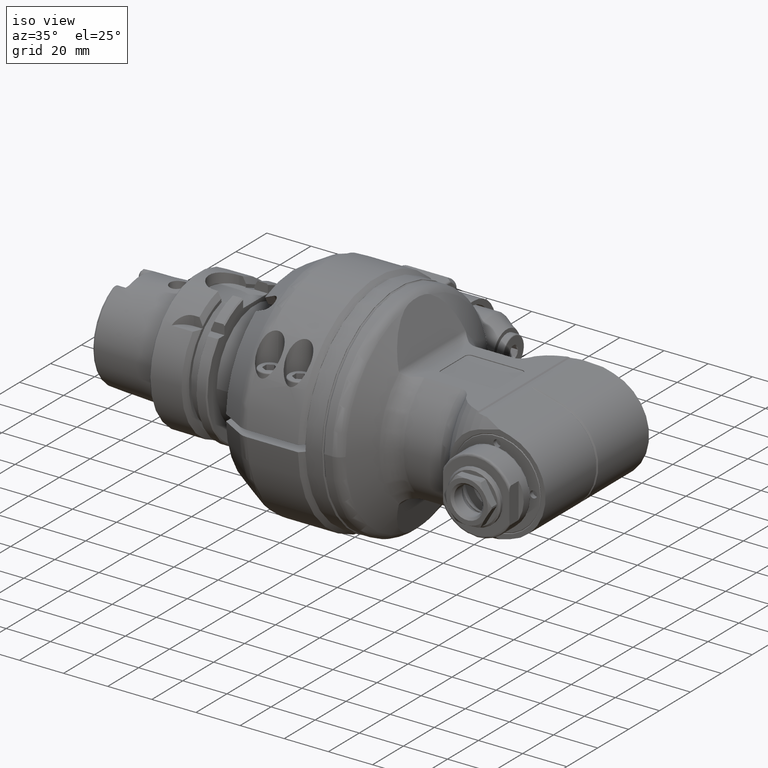
[diagram: clean part render]
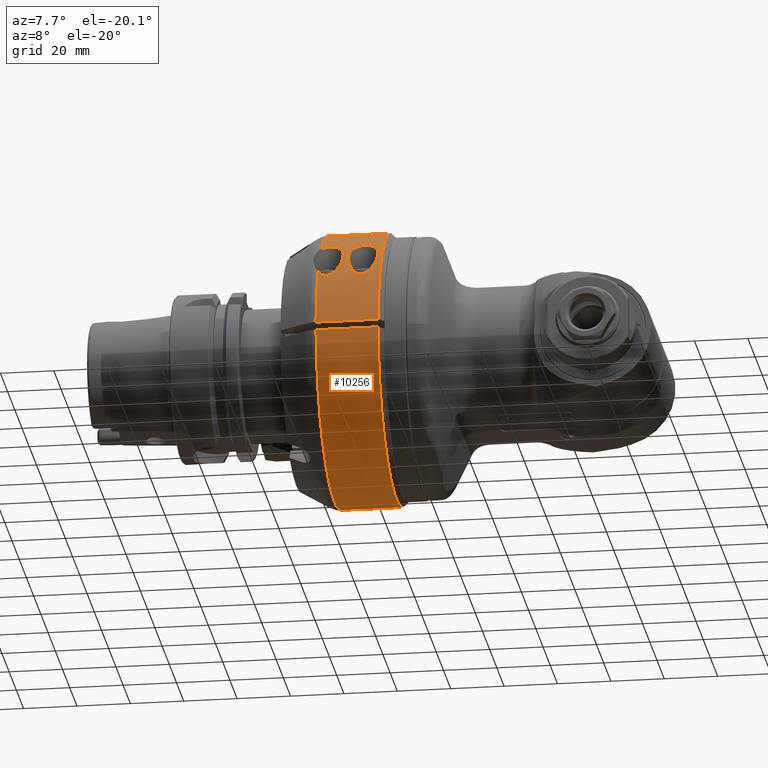
[diagram: tour spotlight — one face highlighted and labeled with its STEP entity id]
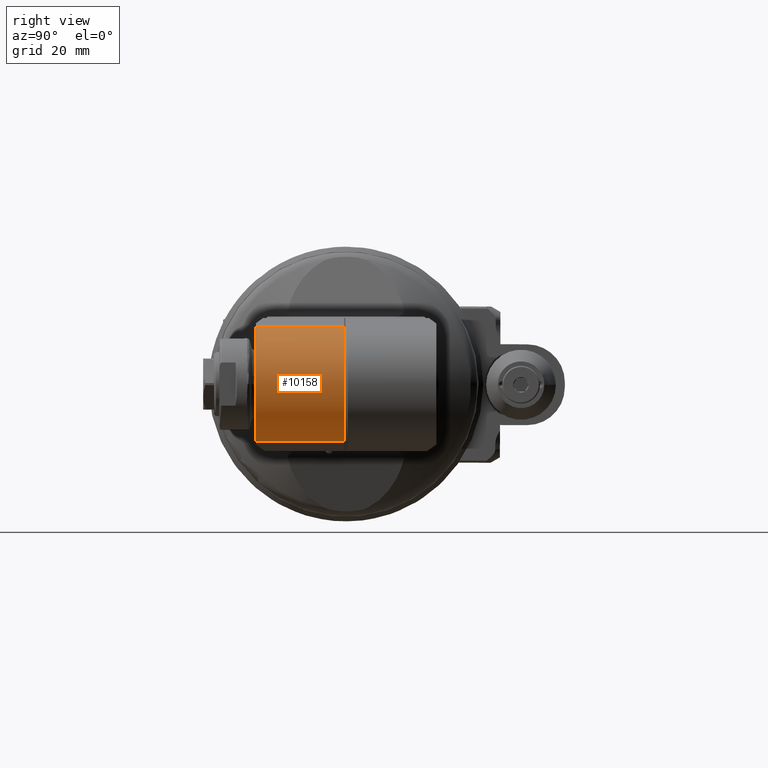
[diagram: tour spotlight — one face highlighted and labeled with its STEP entity id]
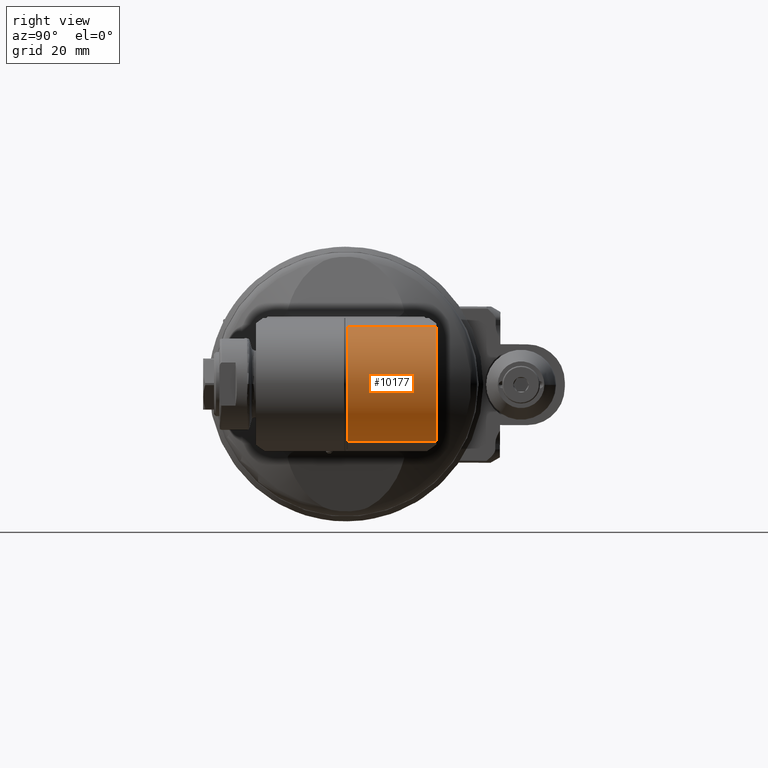
[diagram: tour spotlight — one face highlighted and labeled with its STEP entity id]
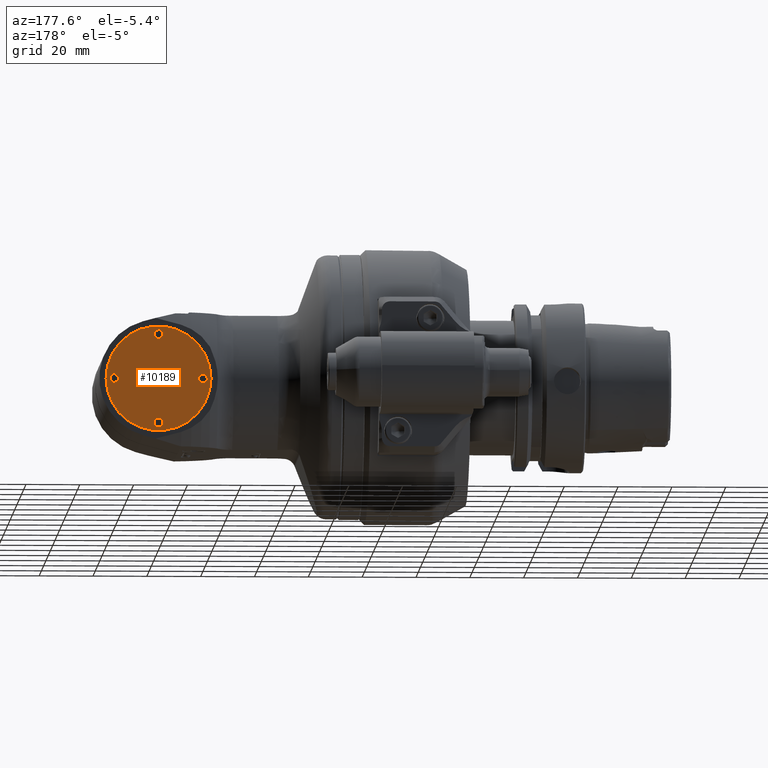
[diagram: tour spotlight — one face highlighted and labeled with its STEP entity id]
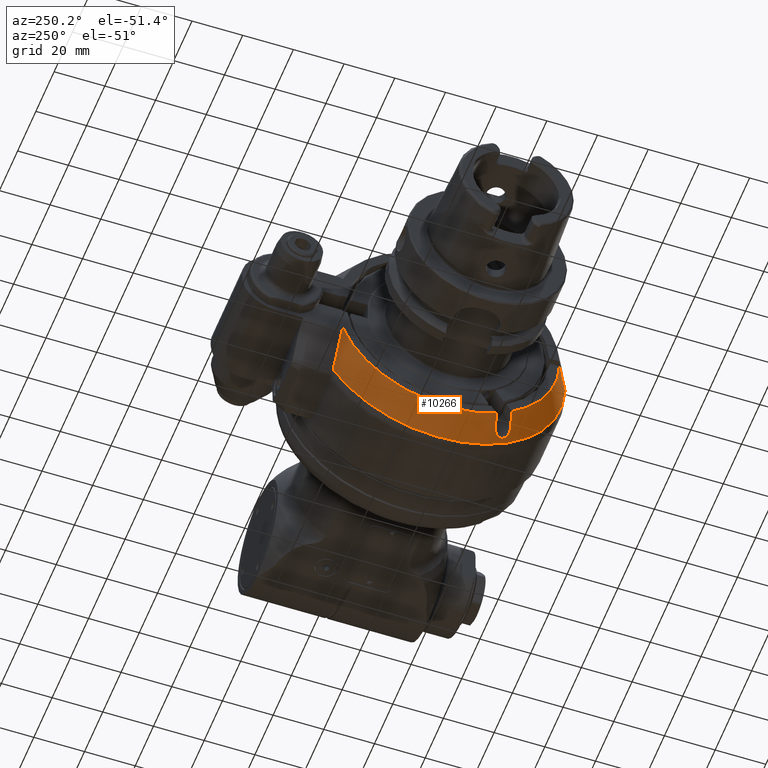
[diagram: tour spotlight — one face highlighted and labeled with its STEP entity id]
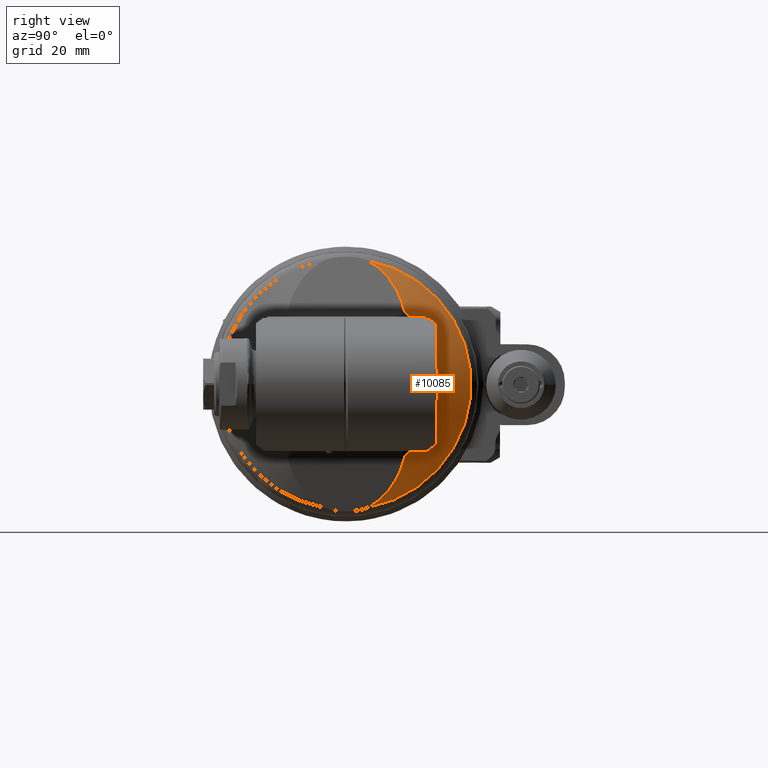
[diagram: tour spotlight — one face highlighted and labeled with its STEP entity id]
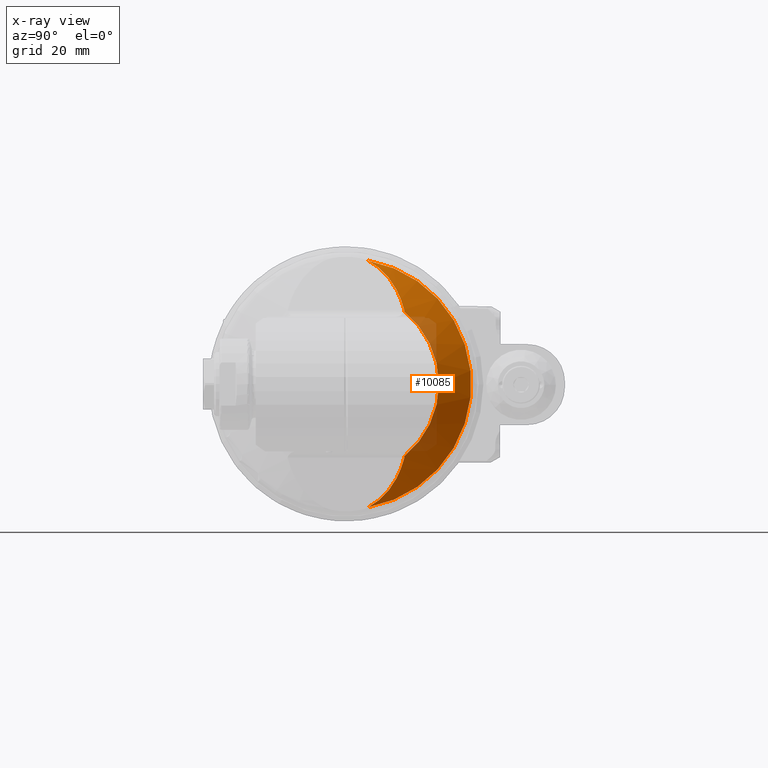
[diagram: x-ray of the same camera — body ghosted, this tour face saturated]
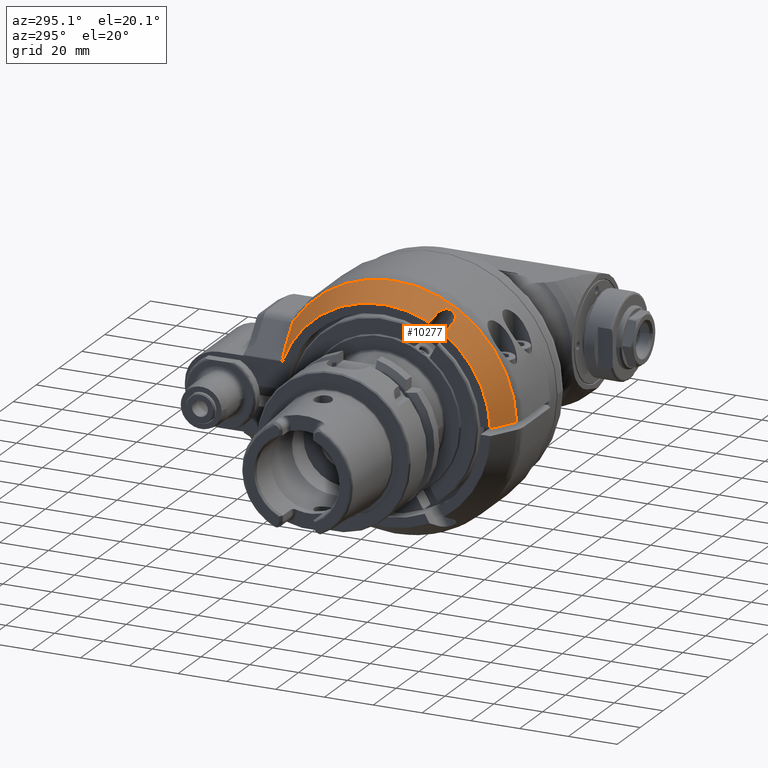
[diagram: tour spotlight — one face highlighted and labeled with its STEP entity id]
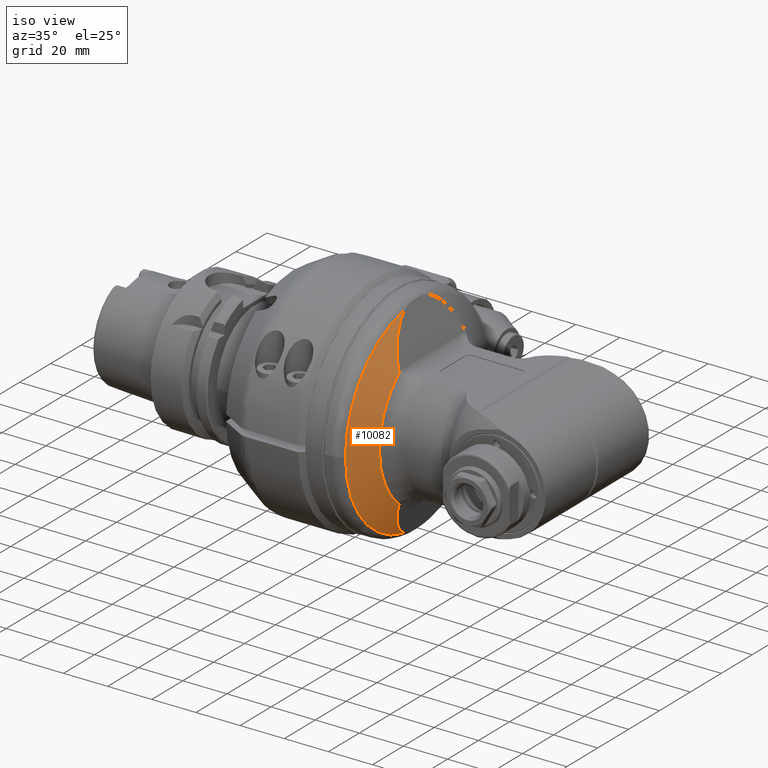
[diagram: tour spotlight — one face highlighted and labeled with its STEP entity id]
A machine part: a face-by-face anatomy tour. The part has 608 B-rep faces; the first image is the clean iso view, then the 8 largest visible faces are spotlighted one at a time (largest first), each with its STEP entity span.

Face 1 — auxiliary view, entity #10256. In plain terms, the highlighted cylindrical surface (partial cylindrical patch) has radius 51 mm, axis along (1, -0, -0).
Definition (entity closure, byte-faithful):
#110=B_SPLINE_CURVE_WITH_KNOTS('',3,(#16496,#16497,#16498,#16499,#16500,
#16501),.UNSPECIFIED.,.F.,.F.,(4,2,4),(-0.351622839102922,-0.201072510356838,
0.),.UNSPECIFIED.);
#111=B_SPLINE_CURVE_WITH_KNOTS('',3,(#16503,#16504,#16505,#16506,#16507,
#16508,#16509,#16510,#16511,#16512,#16513,#16514,#16515,#16516,#16517,#16518,
#16519,#16520,#16521,#16522,#16523,#16524,#16525,#16526,#16527,#16528),
 .UNSPECIFIED.,.F.,.F.,(4,2,2,2,2,2,2,2,2,2,2,2,4),(0.,0.201072510356838,
0.402145020713677,0.729275948801668,1.05640687688966,1.45814522272358,1.85988356855749,
2.08063520459886,2.19101102261954,2.30138684064023,2.41176265866091,2.52213847668159,
2.7154535046118),.UNSPECIFIED.);
#112=B_SPLINE_CURVE_WITH_KNOTS('',3,(#16534,#16535,#16536,#16537,#16538,
#16539,#16540,#16541,#16542,#16543,#16544,#16545,#16546,#16547,#16548,#16549,
#16550,#16551,#16552,#16553,#16554,#16555,#16556),.UNSPECIFIED.,.F.,.F.,
(4,2,2,2,2,3,2,2,2,2,4),(-1.24497996375057,-0.843241617916652,-0.441503272082734,
-0.220751636041367,-0.110375818020684,0.,0.110375818020684,0.220751636041367,
0.441503272082734,0.843241617916652,1.24497996375057),.UNSPECIFIED.);
#113=B_SPLINE_CURVE_WITH_KNOTS('',3,(#16557,#16558,#16559,#16560,#16561,
#16562,#16563,#16564,#16565,#16566,#16567,#16568,#16569,#16570,#16571,#16572,
#16573,#16574),.UNSPECIFIED.,.F.,.F.,(4,2,2,2,2,2,2,2,4),(1.24497996375057,
1.57211089183856,1.89924181992655,2.10031433028339,2.30138684064023,2.50245935099707,
2.70353186135391,3.0306627894419,3.35779371752989),.UNSPECIFIED.);
#479=FACE_BOUND('',#3029,.T.);
#876=LINE('',#16439,#1533);
#878=LINE('',#16443,#1535);
#884=LINE('',#16490,#1541);
#885=LINE('',#16531,#1542);
#1533=VECTOR('',#13147,20.23205080757);
#1535=VECTOR('',#13149,20.23205080757);
#1541=VECTOR('',#13161,23.23206191748);
#1542=VECTOR('',#13170,23.23206611221);
#2048=CYLINDRICAL_SURFACE('',#11311,51.);
#2368=FACE_OUTER_BOUND('',#3028,.T.);
#3028=EDGE_LOOP('',(#7527,#7528,#7529,#7530,#7531,#7532,#7533,#7534,#7535,
#7536,#7537));
#3029=EDGE_LOOP('',(#7538,#7539));
#3672=CIRCLE('',#11312,51.);
#3673=CIRCLE('',#11313,51.);
#3674=CIRCLE('',#11314,51.);
#3675=CIRCLE('',#11315,51.);
#3676=CIRCLE('',#11316,51.);
#4316=VERTEX_POINT('',#16437);
#4317=VERTEX_POINT('',#16438);
#4318=VERTEX_POINT('',#16440);
#4319=VERTEX_POINT('',#16442);
#4329=VERTEX_POINT('',#16486);
#4330=VERTEX_POINT('',#16487);
#4331=VERTEX_POINT('',#16489);
#4332=VERTEX_POINT('',#16493);
#4333=VERTEX_POINT('',#16495);
#4334=VERTEX_POINT('',#16502);
#4335=VERTEX_POINT('',#16529);
#4336=VERTEX_POINT('',#16532);
#4337=VERTEX_POINT('',#16533);
#5483=EDGE_CURVE('',#4316,#4317,#876,.T.);
#5485=EDGE_CURVE('',#4319,#4318,#878,.T.);
#5496=EDGE_CURVE('',#4329,#4330,#3672,.T.);
#5497=EDGE_CURVE('',#4329,#4331,#884,.T.);
#5498=EDGE_CURVE('',#4319,#4331,#3673,.T.);
#5499=EDGE_CURVE('',#4316,#4318,#3674,.T.);
#5500=EDGE_CURVE('',#4332,#4317,#3675,.T.);
#5501=EDGE_CURVE('',#4332,#4333,#110,.T.);
#5502=EDGE_CURVE('',#4333,#4334,#111,.T.);
#5503=EDGE_CURVE('',#4335,#4334,#3676,.T.);
#5504=EDGE_CURVE('',#4335,#4330,#885,.T.);
#5505=EDGE_CURVE('',#4336,#4337,#112,.T.);
#5506=EDGE_CURVE('',#4337,#4336,#113,.T.);
#7527=ORIENTED_EDGE('',*,*,#5496,.F.);
#7528=ORIENTED_EDGE('',*,*,#5497,.T.);
#7529=ORIENTED_EDGE('',*,*,#5498,.F.);
#7530=ORIENTED_EDGE('',*,*,#5485,.T.);
#7531=ORIENTED_EDGE('',*,*,#5499,.F.);
#7532=ORIENTED_EDGE('',*,*,#5483,.T.);
#7533=ORIENTED_EDGE('',*,*,#5500,.F.);
#7534=ORIENTED_EDGE('',*,*,#5501,.T.);
#7535=ORIENTED_EDGE('',*,*,#5502,.T.);
#7536=ORIENTED_EDGE('',*,*,#5503,.F.);
#7537=ORIENTED_EDGE('',*,*,#5504,.T.);
#7538=ORIENTED_EDGE('',*,*,#5505,.T.);
#7539=ORIENTED_EDGE('',*,*,#5506,.T.);
#10256=ADVANCED_FACE('',(#2368,#479),#2048,.T.);
#11311=AXIS2_PLACEMENT_3D('',#16485,#13157,#13158);
#11312=AXIS2_PLACEMENT_3D('',#16488,#13159,#13160);
#11313=AXIS2_PLACEMENT_3D('',#16491,#13162,#13163);
#11314=AXIS2_PLACEMENT_3D('',#16492,#13164,#13165);
#11315=AXIS2_PLACEMENT_3D('',#16494,#13166,#13167);
#11316=AXIS2_PLACEMENT_3D('',#16530,#13168,#13169);
#13147=DIRECTION('',(-1.,0.,0.));
#13149=DIRECTION('',(1.,0.,0.));
#13157=DIRECTION('center_axis',(1.,0.,0.));
#13158=DIRECTION('ref_axis',(0.,1.,1.05873409698834E-10));
#13159=DIRECTION('center_axis',(1.,0.,0.));
#13160=DIRECTION('ref_axis',(0.,1.,0.));
#13161=DIRECTION('',(-1.,-3.620724304585E-11,1.230523343791E-9));
#13162=DIRECTION('center_axis',(-1.,0.,0.));
#13163=DIRECTION('ref_axis',(0.,0.818627450980411,-0.574324904998308));
#13164=DIRECTION('center_axis',(-1.,0.,0.));
#13165=DIRECTION('ref_axis',(0.,1.,0.));
#13166=DIRECTION('center_axis',(-1.,0.,0.));
#13167=DIRECTION('ref_axis',(0.,-0.711205879844998,0.702983781088798));
#13168=DIRECTION('center_axis',(-1.,0.,0.));
#13169=DIRECTION('ref_axis',(0.,-0.999567380468613,0.0294117647058804));
#13170=DIRECTION('',(1.,4.9878538981E-11,1.695142412605E-9));
#16437=CARTESIAN_POINT('',(-17.,41.75,29.29057015492));
#16438=CARTESIAN_POINT('',(-37.23205080757,41.75,29.29057015492));
#16439=CARTESIAN_POINT('',(-17.,41.75,29.29057015492));
#16440=CARTESIAN_POINT('',(-17.,41.75,-29.29057015492));
#16442=CARTESIAN_POINT('',(-37.23205080757,41.75,-29.29057015492));
#16443=CARTESIAN_POINT('',(-37.23205080757,41.75,-29.29057015492));
#16485=CARTESIAN_POINT('Origin',(-43.,0.,0.));
#16486=CARTESIAN_POINT('',(-14.,-50.9779364039,-1.5));
#16487=CARTESIAN_POINT('',(-14.,-50.9779364039,1.5));
#16488=CARTESIAN_POINT('Origin',(-14.,0.,0.));
#16489=CARTESIAN_POINT('',(-37.2320508150874,-50.9779364043201,-1.49999998570621));
#16490=CARTESIAN_POINT('',(-14.,-50.9779364039,-1.5));
#16491=CARTESIAN_POINT('Origin',(-37.23205080757,0.,0.));
#16492=CARTESIAN_POINT('Origin',(-17.,0.,0.));
#16493=CARTESIAN_POINT('',(-37.23205080757,-36.27149987209,35.85217283553));
#16494=CARTESIAN_POINT('Origin',(-37.23205080757,0.,0.));
#16495=CARTESIAN_POINT('',(-34.,-35.2216512827,36.8840789626077));
#16496=CARTESIAN_POINT('Ctrl Pts',(-37.2320508075659,-36.2714998720946,
35.8521728355289));
#16497=CARTESIAN_POINT('Ctrl Pts',(-36.872037357752,-36.0100297211167,36.116701141561));
#16498=CARTESIAN_POINT('Ctrl Pts',(-36.44824163253,-35.7715494474255,36.3518780139684));
#16499=CARTESIAN_POINT('Ctrl Pts',(-35.364786222781,-35.3524177755747,36.760284817991));
#16500=CARTESIAN_POINT('Ctrl Pts',(-34.6702417011895,-35.2216512827,36.8840789626077));
#16501=CARTESIAN_POINT('Ctrl Pts',(-34.,-35.2216512827,36.8840789626077));
#16502=CARTESIAN_POINT('',(-37.23205080757,-45.1718026933,23.67505525733));
#16503=CARTESIAN_POINT('Ctrl Pts',(-34.,-35.2216512827,36.8840789626077));
#16504=CARTESIAN_POINT('Ctrl Pts',(-33.3297582988105,-35.2216512827,36.8840789626077));
#16505=CARTESIAN_POINT('Ctrl Pts',(-32.635213777219,-35.3524177755747,36.760284817991));
#16506=CARTESIAN_POINT('Ctrl Pts',(-31.3960843756493,-35.8317714924385,
36.2931969488346));
#16507=CARTESIAN_POINT('Ctrl Pts',(-30.850648027741,-36.1782586100401,35.9500095679527));
#16508=CARTESIAN_POINT('Ctrl Pts',(-29.7372511904936,-37.1297545962508,
34.9727734951554));
#16509=CARTESIAN_POINT('Ctrl Pts',(-29.2413245727597,-37.8511872002494,
34.1986505928683));
#16510=CARTESIAN_POINT('Ctrl Pts',(-28.6224690823914,-39.319256727814,32.5000944024137));
#16511=CARTESIAN_POINT('Ctrl Pts',(-28.5,-40.0651617871045,31.5748612439451));
#16512=CARTESIAN_POINT('Ctrl Pts',(-28.5,-41.5278636624324,29.6349422633357));
#16513=CARTESIAN_POINT('Ctrl Pts',(-28.6828935944427,-42.355228362554,28.4428786872814));
#16514=CARTESIAN_POINT('Ctrl Pts',(-29.4026147018995,-43.8528254301532,
26.0747465478085));
#16515=CARTESIAN_POINT('Ctrl Pts',(-29.9314939989374,-44.5246315328702,
24.8972647332227));
#16516=CARTESIAN_POINT('Ctrl Pts',(-31.001270294294,-45.3572445916551,23.326334884601));
#16517=CARTESIAN_POINT('Ctrl Pts',(-31.480842706606,-45.6482368635351,22.7481982089167));
#16518=CARTESIAN_POINT('Ctrl Pts',(-32.3308258147761,-45.9710043968678,
22.0845481334827));
#16519=CARTESIAN_POINT('Ctrl Pts',(-32.6354867073276,-46.0599916909384,
21.8974583438779));
#16520=CARTESIAN_POINT('Ctrl Pts',(-33.286197560497,-46.1851905126261,21.6321449190877));
#16521=CARTESIAN_POINT('Ctrl Pts',(-33.6320806065977,-46.2216512827,21.5536296873747));
#16522=CARTESIAN_POINT('Ctrl Pts',(-34.3679193934023,-46.2216512827,21.5536296873747));
#16523=CARTESIAN_POINT('Ctrl Pts',(-34.713802439503,-46.1851905126261,21.6321449190877));
#16524=CARTESIAN_POINT('Ctrl Pts',(-35.3645132926724,-46.0599916909384,
21.8974583438779));
#16525=CARTESIAN_POINT('Ctrl Pts',(-35.6691741852239,-45.9710043968678,
22.0845481334827));
#16526=CARTESIAN_POINT('Ctrl Pts',(-36.4487292658961,-45.6749807840842,
22.6932093917128));
#16527=CARTESIAN_POINT('Ctrl Pts',(-36.8782785168307,-45.4287400225037,
23.1848210334514));
#16528=CARTESIAN_POINT('Ctrl Pts',(-37.2320508075737,-45.1718026932997,
23.6750552573295));
#16529=CARTESIAN_POINT('',(-37.2320508231036,-50.9779364044793,1.499999980309));
#16530=CARTESIAN_POINT('Origin',(-37.23205080757,0.,0.));
#16531=CARTESIAN_POINT('',(-37.23206611221,-50.97793640506,1.499999960618));
#16532=CARTESIAN_POINT('',(-15.5,-40.7216512827,30.70418728464));
#16533=CARTESIAN_POINT('',(-26.5,-40.7216512827,30.7041872846388));
#16534=CARTESIAN_POINT('Ctrl Pts',(-15.5,-40.7216512827,30.7041872846388));
#16535=CARTESIAN_POINT('Ctrl Pts',(-15.5,-41.5278636624324,29.6349422633357));
#16536=CARTESIAN_POINT('Ctrl Pts',(-15.6828935944427,-42.355228362554,28.4428786872814));
#16537=CARTESIAN_POINT('Ctrl Pts',(-16.4026147018995,-43.8528254301532,
26.0747465478085));
#16538=CARTESIAN_POINT('Ctrl Pts',(-16.9314939989374,-44.5246315328702,
24.8972647332227));
#16539=CARTESIAN_POINT('Ctrl Pts',(-18.001270294294,-45.3572445916551,23.326334884601));
#16540=CARTESIAN_POINT('Ctrl Pts',(-18.480842706606,-45.6482368635351,22.7481982089167));
#16541=CARTESIAN_POINT('Ctrl Pts',(-19.3308258147761,-45.9710043968678,
22.0845481334827));
#16542=CARTESIAN_POINT('Ctrl Pts',(-19.6354867073276,-46.0599916909384,
21.8974583438779));
#16543=CARTESIAN_POINT('Ctrl Pts',(-20.286197560497,-46.1851905126261,21.6321449190877));
#16544=CARTESIAN_POINT('Ctrl Pts',(-20.6320806065977,-46.2216512827,21.5536296873747));
#16545=CARTESIAN_POINT('Ctrl Pts',(-21.,-46.2216512827,21.5536296873747));
#16546=CARTESIAN_POINT('Ctrl Pts',(-21.3679193934023,-46.2216512827,21.5536296873747));
#16547=CARTESIAN_POINT('Ctrl Pts',(-21.713802439503,-46.1851905126261,21.6321449190877));
#16548=CARTESIAN_POINT('Ctrl Pts',(-22.3645132926724,-46.0599916909384,
21.8974583438779));
#16549=CARTESIAN_POINT('Ctrl Pts',(-22.6691741852239,-45.9710043968678,
22.0845481334827));
#16550=CARTESIAN_POINT('Ctrl Pts',(-23.519157293394,-45.6482368635351,22.7481982089167));
#16551=CARTESIAN_POINT('Ctrl Pts',(-23.998729705706,-45.3572445916551,23.326334884601));
#16552=CARTESIAN_POINT('Ctrl Pts',(-25.0685060010626,-44.5246315328702,
24.8972647332227));
#16553=CARTESIAN_POINT('Ctrl Pts',(-25.5973852981005,-43.8528254301532,
26.0747465478085));
#16554=CARTESIAN_POINT('Ctrl Pts',(-26.3171064055573,-42.355228362554,28.4428786872814));
#16555=CARTESIAN_POINT('Ctrl Pts',(-26.5,-41.5278636624324,29.6349422633357));
#16556=CARTESIAN_POINT('Ctrl Pts',(-26.5,-40.7216512827,30.7041872846388));
#16557=CARTESIAN_POINT('Ctrl Pts',(-26.5,-40.7216512827,30.7041872846388));
#16558=CARTESIAN_POINT('Ctrl Pts',(-26.5,-40.0651617871045,31.5748612439451));
#16559=CARTESIAN_POINT('Ctrl Pts',(-26.3775309176086,-39.319256727814,32.5000944024137));
#16560=CARTESIAN_POINT('Ctrl Pts',(-25.7586754272403,-37.8511872002494,
34.1986505928683));
#16561=CARTESIAN_POINT('Ctrl Pts',(-25.2627488095064,-37.1297545962508,
34.9727734951554));
#16562=CARTESIAN_POINT('Ctrl Pts',(-24.149351972259,-36.1782586100401,35.9500095679527));
#16563=CARTESIAN_POINT('Ctrl Pts',(-23.6039156243507,-35.8317714924385,
36.2931969488346));
#16564=CARTESIAN_POINT('Ctrl Pts',(-22.364786222781,-35.3524177755747,36.760284817991));
#16565=CARTESIAN_POINT('Ctrl Pts',(-21.6702417011895,-35.2216512827,36.8840789626077));
#16566=CARTESIAN_POINT('Ctrl Pts',(-20.3297582988105,-35.2216512827,36.8840789626077));
#16567=CARTESIAN_POINT('Ctrl Pts',(-19.635213777219,-35.3524177755747,36.760284817991));
#16568=CARTESIAN_POINT('Ctrl Pts',(-18.3960843756493,-35.8317714924385,
36.2931969488346));
#16569=CARTESIAN_POINT('Ctrl Pts',(-17.850648027741,-36.1782586100401,35.9500095679527));
#16570=CARTESIAN_POINT('Ctrl Pts',(-16.7372511904936,-37.1297545962508,
34.9727734951554));
#16571=CARTESIAN_POINT('Ctrl Pts',(-16.2413245727597,-37.8511872002494,
34.1986505928683));
#16572=CARTESIAN_POINT('Ctrl Pts',(-15.6224690823914,-39.319256727814,32.5000944024137));
#16573=CARTESIAN_POINT('Ctrl Pts',(-15.5,-40.0651617871045,31.5748612439451));
#16574=CARTESIAN_POINT('Ctrl Pts',(-15.5,-40.7216512827,30.7041872846388));

Face 2 — right view, entity #10158. In plain terms, the highlighted cylindrical surface (partial cylindrical patch) has radius 22 mm, axis along (0, 1, 0).
Definition (entity closure, byte-faithful):
#777=LINE('',#15946,#1434);
#786=LINE('',#15980,#1443);
#1434=VECTOR('',#12678,32.83431457505);
#1443=VECTOR('',#12715,32.83431457505);
#2020=CYLINDRICAL_SURFACE('',#11138,22.);
#2270=FACE_OUTER_BOUND('',#2918,.T.);
#2918=EDGE_LOOP('',(#7091,#7092,#7093,#7094));
#3514=CIRCLE('',#10963,22.);
#3602=CIRCLE('',#11136,22.);
#4057=VERTEX_POINT('',#15312);
#4058=VERTEX_POINT('',#15314);
#4202=VERTEX_POINT('',#15944);
#4209=VERTEX_POINT('',#15974);
#5089=EDGE_CURVE('',#4057,#4058,#3514,.T.);
#5285=EDGE_CURVE('',#4057,#4202,#777,.T.);
#5298=EDGE_CURVE('',#4209,#4202,#3602,.T.);
#5301=EDGE_CURVE('',#4209,#4058,#786,.T.);
#7091=ORIENTED_EDGE('',*,*,#5298,.F.);
#7092=ORIENTED_EDGE('',*,*,#5301,.T.);
#7093=ORIENTED_EDGE('',*,*,#5089,.F.);
#7094=ORIENTED_EDGE('',*,*,#5285,.T.);
#10158=ADVANCED_FACE('',(#2270),#2020,.T.);
#10963=AXIS2_PLACEMENT_3D('',#15315,#12285,#12286);
#11136=AXIS2_PLACEMENT_3D('',#15975,#12708,#12709);
#11138=AXIS2_PLACEMENT_3D('',#15979,#12713,#12714);
#12285=DIRECTION('center_axis',(0.,-1.,0.));
#12286=DIRECTION('ref_axis',(0.258819045102493,0.,-0.965925826289076));
#12678=DIRECTION('',(0.,1.,0.));
#12708=DIRECTION('center_axis',(0.,1.,0.));
#12709=DIRECTION('ref_axis',(0.258819045102493,0.,0.965925826289076));
#12713=DIRECTION('center_axis',(0.,1.,0.));
#12714=DIRECTION('ref_axis',(1.,0.,-2.19257604986016E-13));
#12715=DIRECTION('',(0.,-1.,0.));
#15312=CARTESIAN_POINT('',(85.69401899225,-33.5,-21.25036817836));
#15314=CARTESIAN_POINT('',(85.69401899226,-33.5,21.25036817836));
#15315=CARTESIAN_POINT('Origin',(80.,-33.5,0.));
#15944=CARTESIAN_POINT('',(85.69401899226,-0.6656854249492,-21.25036817836));
#15946=CARTESIAN_POINT('',(85.69401899226,-33.5,-21.25036817836));
#15974=CARTESIAN_POINT('',(85.69401899226,-0.6656854249492,21.25036817836));
#15975=CARTESIAN_POINT('Origin',(80.,-0.6656854249492,0.));
#15979=CARTESIAN_POINT('Origin',(80.,-71.53832403312,0.));
#15980=CARTESIAN_POINT('',(85.69401899226,-0.6656854249492,21.25036817836));

Face 3 — right view, entity #10177. In plain terms, the highlighted cylindrical surface (partial cylindrical patch) has radius 22 mm, axis along (0, 1, 0).
Definition (entity closure, byte-faithful):
#794=LINE('',#16126,#1451);
#795=LINE('',#16129,#1452);
#1451=VECTOR('',#12795,32.83431457505);
#1452=VECTOR('',#12798,32.83431457505);
#2021=CYLINDRICAL_SURFACE('',#11175,22.);
#2289=FACE_OUTER_BOUND('',#2938,.T.);
#2938=EDGE_LOOP('',(#7192,#7193,#7194,#7195));
#3616=CIRCLE('',#11172,22.);
#3618=CIRCLE('',#11176,22.);
#4207=VERTEX_POINT('',#15964);
#4234=VERTEX_POINT('',#16118);
#4235=VERTEX_POINT('',#16120);
#4237=VERTEX_POINT('',#16128);
#5342=EDGE_CURVE('',#4234,#4235,#3616,.T.);
#5345=EDGE_CURVE('',#4207,#4235,#794,.T.);
#5346=EDGE_CURVE('',#4234,#4237,#795,.T.);
#5347=EDGE_CURVE('',#4207,#4237,#3618,.T.);
#7192=ORIENTED_EDGE('',*,*,#5345,.T.);
#7193=ORIENTED_EDGE('',*,*,#5342,.F.);
#7194=ORIENTED_EDGE('',*,*,#5346,.T.);
#7195=ORIENTED_EDGE('',*,*,#5347,.F.);
#10177=ADVANCED_FACE('',(#2289),#2021,.T.);
#11172=AXIS2_PLACEMENT_3D('',#16121,#12788,#12789);
#11175=AXIS2_PLACEMENT_3D('',#16127,#12796,#12797);
#11176=AXIS2_PLACEMENT_3D('',#16130,#12799,#12800);
#12788=DIRECTION('center_axis',(0.,1.,0.));
#12789=DIRECTION('ref_axis',(0.258819045102493,0.,0.965925826289076));
#12795=DIRECTION('',(0.,1.,0.));
#12796=DIRECTION('center_axis',(0.,1.,0.));
#12797=DIRECTION('ref_axis',(1.,0.,-2.19502534345846E-13));
#12798=DIRECTION('',(0.,-1.,0.));
#12799=DIRECTION('center_axis',(0.,-1.,0.));
#12800=DIRECTION('ref_axis',(1.,0.,0.));
#15964=CARTESIAN_POINT('',(85.69401899226,0.6656854249493,-21.25036817836));
#16118=CARTESIAN_POINT('',(85.69401899226,33.5,21.25036817836));
#16120=CARTESIAN_POINT('',(85.69401899225,33.5,-21.25036817836));
#16121=CARTESIAN_POINT('Origin',(80.,33.5,0.));
#16126=CARTESIAN_POINT('',(85.69401899226,0.6656854249493,-21.25036817836));
#16127=CARTESIAN_POINT('Origin',(80.,-71.53832403312,0.));
#16128=CARTESIAN_POINT('',(85.69401899226,0.6656854249493,21.25036817836));
#16129=CARTESIAN_POINT('',(85.69401899226,33.5,21.25036817836));
#16130=CARTESIAN_POINT('Origin',(80.,0.6656854249493,0.));

Face 4 — auxiliary view, entity #10189. In plain terms, the highlighted planar face has unit normal (0, 1, 0).
Definition (entity closure, byte-faithful):
#468=FACE_BOUND('',#2951,.T.);
#469=FACE_BOUND('',#2952,.T.);
#470=FACE_BOUND('',#2953,.T.);
#471=FACE_BOUND('',#2954,.T.);
#2301=FACE_OUTER_BOUND('',#2950,.T.);
#2950=EDGE_LOOP('',(#7244));
#2951=EDGE_LOOP('',(#7245));
#2952=EDGE_LOOP('',(#7246));
#2953=EDGE_LOOP('',(#7247));
#2954=EDGE_LOOP('',(#7248));
#3625=CIRCLE('',#11195,19.5);
#3626=CIRCLE('',#11197,1.6);
#3627=CIRCLE('',#11198,1.6);
#3628=CIRCLE('',#11199,1.6);
#3629=CIRCLE('',#11200,1.6);
#4243=VERTEX_POINT('',#16163);
#4244=VERTEX_POINT('',#16167);
#4245=VERTEX_POINT('',#16169);
#4246=VERTEX_POINT('',#16171);
#4247=VERTEX_POINT('',#16173);
#5363=EDGE_CURVE('',#4243,#4243,#3625,.T.);
#5364=EDGE_CURVE('',#4244,#4244,#3626,.T.);
#5365=EDGE_CURVE('',#4245,#4245,#3627,.T.);
#5366=EDGE_CURVE('',#4246,#4246,#3628,.T.);
#5367=EDGE_CURVE('',#4247,#4247,#3629,.T.);
#7244=ORIENTED_EDGE('',*,*,#5363,.T.);
#7245=ORIENTED_EDGE('',*,*,#5364,.T.);
#7246=ORIENTED_EDGE('',*,*,#5365,.T.);
#7247=ORIENTED_EDGE('',*,*,#5366,.T.);
#7248=ORIENTED_EDGE('',*,*,#5367,.T.);
#9497=PLANE('',#11196);
#10189=ADVANCED_FACE('',(#2301,#468,#469,#470,#471),#9497,.T.);
#11195=AXIS2_PLACEMENT_3D('',#16165,#12844,#12845);
#11196=AXIS2_PLACEMENT_3D('',#16166,#12846,#12847);
#11197=AXIS2_PLACEMENT_3D('',#16168,#12848,#12849);
#11198=AXIS2_PLACEMENT_3D('',#16170,#12850,#12851);
#11199=AXIS2_PLACEMENT_3D('',#16172,#12852,#12853);
#11200=AXIS2_PLACEMENT_3D('',#16174,#12854,#12855);
#12844=DIRECTION('center_axis',(0.,1.,0.));
#12845=DIRECTION('ref_axis',(1.,0.,0.));
#12846=DIRECTION('center_axis',(0.,1.,0.));
#12847=DIRECTION('ref_axis',(-1.,0.,0.));
#12848=DIRECTION('center_axis',(0.,-1.,0.));
#12849=DIRECTION('ref_axis',(-1.,0.,0.));
#12850=DIRECTION('center_axis',(0.,-1.,0.));
#12851=DIRECTION('ref_axis',(-1.,0.,0.));
#12852=DIRECTION('center_axis',(0.,-1.,0.));
#12853=DIRECTION('ref_axis',(-1.,0.,0.));
#12854=DIRECTION('center_axis',(0.,-1.,0.));
#12855=DIRECTION('ref_axis',(-1.,0.,0.));
#16163=CARTESIAN_POINT('',(60.49999995534,33.5,-2.38806125833734E-15));
#16165=CARTESIAN_POINT('Origin',(79.99999995534,33.5,0.));
#16166=CARTESIAN_POINT('Origin',(95.99999995534,33.5,0.));
#16167=CARTESIAN_POINT('',(81.59999995534,33.5,-16.49999984466));
#16168=CARTESIAN_POINT('Origin',(79.99999995534,33.5,-16.49999984466));
#16169=CARTESIAN_POINT('',(98.09999995534,33.5,0.));
#16170=CARTESIAN_POINT('Origin',(96.49999995534,33.5,0.));
#16171=CARTESIAN_POINT('',(81.59999995534,33.5,16.49999984466));
#16172=CARTESIAN_POINT('Origin',(79.99999995534,33.5,16.49999984466));
#16173=CARTESIAN_POINT('',(65.10000011068,33.5,0.));
#16174=CARTESIAN_POINT('Origin',(63.50000011068,33.5,0.));

Face 5 — auxiliary view, entity #10266. In plain terms, the highlighted conical surface has half-angle 30 deg.
Definition (entity closure, byte-faithful):
#114=B_SPLINE_CURVE_WITH_KNOTS('',3,(#16597,#16598,#16599,#16600,#16601,
#16602,#16603,#16604,#16605,#16606),.UNSPECIFIED.,.F.,.F.,(4,3,3,4),(0.,
0.3333333333333,0.6666666666667,1.),.UNSPECIFIED.);
#117=B_SPLINE_CURVE_WITH_KNOTS('',3,(#16659,#16660,#16661,#16662,#16663,
#16664,#16665,#16666,#16667,#16668,#16669,#16670,#16671,#16672,#16673,#16674,
#16675,#16676),.UNSPECIFIED.,.F.,.F.,(4,2,2,2,2,2,2,2,4),(1.11206982951625,
1.24885677734264,1.4029266724495,1.5444028479349,1.68587902342029,1.82735519890569,
1.96883137439109,2.12290126949794,2.25968821732541),.UNSPECIFIED.);
#119=B_SPLINE_CURVE_WITH_KNOTS('',3,(#16698,#16699,#16700,#16701,#16702,
#16703,#16704,#16705,#16706,#16707),.UNSPECIFIED.,.F.,.F.,(4,3,3,4),(0.,
0.3333333333333,0.6666666666667,1.),.UNSPECIFIED.);
#120=B_SPLINE_CURVE_WITH_KNOTS('',3,(#16713,#16714,#16715,#16716,#16717,
#16718,#16719,#16720,#16721,#16722),.UNSPECIFIED.,.F.,.F.,(4,3,3,4),(0.,
0.3333333333333,0.6666666666667,1.),.UNSPECIFIED.);
#318=(
BOUNDED_CURVE()
B_SPLINE_CURVE(2,(#16456,#16457,#16458),.UNSPECIFIED.,.F.,.F.)
B_SPLINE_CURVE_WITH_KNOTS((3,3),(-2.43290769105801,-0.320305328668483),
 .UNSPECIFIED.)
CURVE()
GEOMETRIC_REPRESENTATION_ITEM()
RATIONAL_B_SPLINE_CURVE((1.03252076511009,1.03062027413364,1.00749895945509))
REPRESENTATION_ITEM('')
);
#595=CONICAL_SURFACE('',#11337,46.96410161514,0.523598775598299);
#2378=FACE_OUTER_BOUND('',#3041,.T.);
#3041=EDGE_LOOP('',(#7591,#7592,#7593,#7594,#7595,#7596,#7597,#7598));
#3688=CIRCLE('',#11338,49.92820323028);
#3689=CIRCLE('',#11339,44.);
#3690=CIRCLE('',#11340,44.);
#4320=VERTEX_POINT('',#16444);
#4321=VERTEX_POINT('',#16455);
#4344=VERTEX_POINT('',#16594);
#4345=VERTEX_POINT('',#16596);
#4358=VERTEX_POINT('',#16657);
#4359=VERTEX_POINT('',#16658);
#4363=VERTEX_POINT('',#16697);
#4364=VERTEX_POINT('',#16711);
#5487=EDGE_CURVE('',#4320,#4321,#318,.T.);
#5515=EDGE_CURVE('',#4345,#4344,#114,.T.);
#5533=EDGE_CURVE('',#4358,#4359,#117,.F.);
#5540=EDGE_CURVE('',#4358,#4363,#119,.T.);
#5542=EDGE_CURVE('',#4345,#4320,#3688,.T.);
#5543=EDGE_CURVE('',#4364,#4344,#3689,.T.);
#5544=EDGE_CURVE('',#4364,#4359,#120,.T.);
#5545=EDGE_CURVE('',#4321,#4363,#3690,.T.);
#7591=ORIENTED_EDGE('',*,*,#5542,.F.);
#7592=ORIENTED_EDGE('',*,*,#5515,.T.);
#7593=ORIENTED_EDGE('',*,*,#5543,.F.);
#7594=ORIENTED_EDGE('',*,*,#5544,.T.);
#7595=ORIENTED_EDGE('',*,*,#5533,.F.);
#7596=ORIENTED_EDGE('',*,*,#5540,.T.);
#7597=ORIENTED_EDGE('',*,*,#5545,.F.);
#7598=ORIENTED_EDGE('',*,*,#5487,.F.);
#10266=ADVANCED_FACE('',(#2378),#595,.T.);
#11337=AXIS2_PLACEMENT_3D('',#16709,#13227,#13228);
#11338=AXIS2_PLACEMENT_3D('',#16710,#13229,#13230);
#11339=AXIS2_PLACEMENT_3D('',#16712,#13231,#13232);
#11340=AXIS2_PLACEMENT_3D('',#16723,#13233,#13234);
#13227=DIRECTION('center_axis',(1.,0.,0.));
#13228=DIRECTION('ref_axis',(0.,-1.,0.));
#13229=DIRECTION('center_axis',(1.,0.,0.));
#13230=DIRECTION('ref_axis',(0.,-0.999548602989596,-0.0300431400080999));
#13231=DIRECTION('center_axis',(-1.,0.,0.));
#13232=DIRECTION('ref_axis',(0.,-0.567304004296905,-0.823508449688707));
#13233=DIRECTION('center_axis',(-1.,0.,0.));
#13234=DIRECTION('ref_axis',(0.,0.948863636363632,-0.315686235979311));
#16444=CARTESIAN_POINT('',(-41.23205080757,41.75,-27.38180011986));
#16455=CARTESIAN_POINT('',(-51.5,41.74999999999,-13.89019438316));
#16456=CARTESIAN_POINT('Ctrl Pts',(-41.2320508075673,41.75,-27.3818001198562));
#16457=CARTESIAN_POINT('Ctrl Pts',(-48.0442956678564,41.75,-20.2102413126131));
#16458=CARTESIAN_POINT('Ctrl Pts',(-51.4999999999632,41.75,-13.8901943831554));
#16594=CARTESIAN_POINT('',(-51.5,-43.97442438509,-1.5));
#16596=CARTESIAN_POINT('',(-41.2320595617708,-49.9056607292726,-1.50000007595379));
#16597=CARTESIAN_POINT('Ctrl Pts',(-41.23206831446,-49.90565567486,-1.5));
#16598=CARTESIAN_POINT('Ctrl Pts',(-42.37293045262,-49.24668115316,-1.5));
#16599=CARTESIAN_POINT('Ctrl Pts',(-43.5138242319948,-48.5876765558151,
-1.5));
#16600=CARTESIAN_POINT('Ctrl Pts',(-44.6547122553555,-47.928662020786,-1.5));
#16601=CARTESIAN_POINT('Ctrl Pts',(-45.7956002787165,-47.2696474857567,
-1.5));
#16602=CARTESIAN_POINT('Ctrl Pts',(-46.9364825460635,-46.6106230130433,
-1.5));
#16603=CARTESIAN_POINT('Ctrl Pts',(-48.077363540237,-45.9515842405615,-1.5));
#16604=CARTESIAN_POINT('Ctrl Pts',(-49.2182445344102,-45.2925454680799,
-1.5));
#16605=CARTESIAN_POINT('Ctrl Pts',(-50.35912425541,-44.63349239583,-1.5));
#16606=CARTESIAN_POINT('Ctrl Pts',(-51.5,-43.97442438509,-1.5));
#16657=CARTESIAN_POINT('',(-46.5,-20.34687855495,-42.24182743261));
#16658=CARTESIAN_POINT('',(-46.5,-26.40905638145,-38.74182743261));
#16659=CARTESIAN_POINT('Ctrl Pts',(-46.5000000000002,-26.4090563814455,
-38.7418274326129));
#16660=CARTESIAN_POINT('Ctrl Pts',(-46.0992085079157,-26.5250786273062,
-38.9427838572518));
#16661=CARTESIAN_POINT('Ctrl Pts',(-45.6780271021362,-26.5877455833705,
-39.1945532832522));
#16662=CARTESIAN_POINT('Ctrl Pts',(-44.8336229766582,-26.5711996809164,
-39.7934207779667));
#16663=CARTESIAN_POINT('Ctrl Pts',(-44.416786404141,-26.4721822625297,-40.1489075806805));
#16664=CARTESIAN_POINT('Ctrl Pts',(-43.7689100689263,-26.1383338430384,
-40.8117265913294));
#16665=CARTESIAN_POINT('Ctrl Pts',(-43.4858969585476,-25.8928265156274,
-41.1623315039927));
#16666=CARTESIAN_POINT('Ctrl Pts',(-43.1011571537054,-25.2551263794943,
-41.8163473322267));
#16667=CARTESIAN_POINT('Ctrl Pts',(-43.,-24.8621451840586,-42.1193241407055));
#16668=CARTESIAN_POINT('Ctrl Pts',(-43.,-24.0453321040545,-42.5909113923235));
#16669=CARTESIAN_POINT('Ctrl Pts',(-43.1011571537054,-23.5864558934365,
-42.779754686541));
#16670=CARTESIAN_POINT('Ctrl Pts',(-43.4858969585476,-22.7012115036422,
-43.0050112903121));
#16671=CARTESIAN_POINT('Ctrl Pts',(-43.7689100689263,-22.2748250788787,
-43.0423244163336));
#16672=CARTESIAN_POINT('Ctrl Pts',(-44.416786404141,-21.5338827677997,-43.000036123302));
#16673=CARTESIAN_POINT('Ctrl Pts',(-44.8336229766582,-21.1765134567462,
-42.908044321685));
#16674=CARTESIAN_POINT('Ctrl Pts',(-45.6780271021394,-20.6496060415937,
-42.6229397461805));
#16675=CARTESIAN_POINT('Ctrl Pts',(-46.0992085079223,-20.4629008008123,
-42.4427838572491));
#16676=CARTESIAN_POINT('Ctrl Pts',(-46.5000000000096,-20.3468785549518,
-42.2418274326083));
#16697=CARTESIAN_POINT('',(-51.5,-18.89919836257,-39.7343717863));
#16698=CARTESIAN_POINT('Ctrl Pts',(-46.5000000000021,-20.3468785549516,
-42.2418274326133));
#16699=CARTESIAN_POINT('Ctrl Pts',(-47.0555636796788,-20.1860524218991,
-41.9632683989681));
#16700=CARTESIAN_POINT('Ctrl Pts',(-47.6111251834313,-20.0252176577258,
-41.6846944543344));
#16701=CARTESIAN_POINT('Ctrl Pts',(-48.1666839961781,-19.864373839952,-41.4061048113106));
#16702=CARTESIAN_POINT('Ctrl Pts',(-48.7222428089251,-19.7035300221781,
-41.1275151682867));
#16703=CARTESIAN_POINT('Ctrl Pts',(-49.2777989309903,-19.5426771511998,
-40.8489098273047));
#16704=CARTESIAN_POINT('Ctrl Pts',(-49.8333517949414,-19.381814745264,-40.5702879469552));
#16705=CARTESIAN_POINT('Ctrl Pts',(-50.3889046588924,-19.2209523393283,
-40.2916660666057));
#16706=CARTESIAN_POINT('Ctrl Pts',(-50.9444542651007,-19.0600803989606,
-40.0130276473512));
#16707=CARTESIAN_POINT('Ctrl Pts',(-51.5000000000014,-18.8991983625711,
-39.7343717863022));
#16709=CARTESIAN_POINT('Origin',(-46.36602540378,0.,0.));
#16710=CARTESIAN_POINT('Origin',(-41.23205080757,0.,0.));
#16711=CARTESIAN_POINT('',(-51.5,-24.96137618907,-36.2343717863));
#16712=CARTESIAN_POINT('Origin',(-51.5,0.,0.));
#16713=CARTESIAN_POINT('Ctrl Pts',(-51.4999999999995,-24.9613761890695,
-36.2343717862992));
#16714=CARTESIAN_POINT('Ctrl Pts',(-50.9444542651011,-25.1222582254511,
-36.5130276473516));
#16715=CARTESIAN_POINT('Ctrl Pts',(-50.3889046588926,-25.2831302048165,
-36.7916660440905));
#16716=CARTESIAN_POINT('Ctrl Pts',(-49.8333517949413,-25.4439926282826,
-37.070287914319));
#16717=CARTESIAN_POINT('Ctrl Pts',(-49.2777989309897,-25.6048550517487,
-37.3489097845476));
#16718=CARTESIAN_POINT('Ctrl Pts',(-48.7222428089239,-25.7657079191777,
-37.6275151275794));
#16719=CARTESIAN_POINT('Ctrl Pts',(-48.166683996177,-25.9265517183818,-37.9061047813243));
#16720=CARTESIAN_POINT('Ctrl Pts',(-47.6111251834304,-26.0873955175858,
-38.1846944350692));
#16721=CARTESIAN_POINT('Ctrl Pts',(-47.0555636796788,-26.2482302483888,
-38.4632683989682));
#16722=CARTESIAN_POINT('Ctrl Pts',(-46.5,-26.40905638145,-38.74182743261));
#16723=CARTESIAN_POINT('Origin',(-51.5,0.,0.));

Face 6 — right view, entity #10085. An x-ray twin of the same camera follows (body ghosted, this face saturated) — the face is partly hidden behind the body. In plain terms, the highlighted conical surface has half-angle 60 deg.
Definition (entity closure, byte-faithful):
#65=ELLIPSE('',#10975,31.1727494163443,22.7387822282698);
#67=ELLIPSE('',#10983,31.1727494163443,22.7387822282698);
#92=B_SPLINE_CURVE_WITH_KNOTS('',3,(#15467,#15468,#15469,#15470,#15471,
#15472,#15473,#15474),.UNSPECIFIED.,.F.,.F.,(4,2,2,4),(2.18673200160695,
2.19364969071324,2.22722554832336,2.26058373672803),.UNSPECIFIED.);
#95=B_SPLINE_CURVE_WITH_KNOTS('',3,(#15511,#15512,#15513,#15514,#15515,
#15516,#15517,#15518),.UNSPECIFIED.,.F.,.F.,(4,2,2,4),(2.18673200160694,
2.19364969071324,2.22722554832336,2.26058373671197),.UNSPECIFIED.);
#542=CONICAL_SURFACE('',#10984,40.5,1.0471975511966);
#2197=FACE_OUTER_BOUND('',#2821,.T.);
#2821=EDGE_LOOP('',(#6762,#6763,#6764,#6765,#6766,#6767));
#3524=CIRCLE('',#10985,46.5);
#3525=CIRCLE('',#10986,34.5);
#4085=VERTEX_POINT('',#15434);
#4088=VERTEX_POINT('',#15456);
#4090=VERTEX_POINT('',#15478);
#4095=VERTEX_POINT('',#15508);
#4096=VERTEX_POINT('',#15510);
#4099=VERTEX_POINT('',#15543);
#5123=EDGE_CURVE('',#4085,#4088,#92,.T.);
#5125=EDGE_CURVE('',#4090,#4085,#65,.T.);
#5133=EDGE_CURVE('',#4095,#4096,#95,.T.);
#5137=EDGE_CURVE('',#4099,#4095,#67,.T.);
#5139=EDGE_CURVE('',#4090,#4099,#3524,.T.);
#5140=EDGE_CURVE('',#4096,#4088,#3525,.T.);
#6762=ORIENTED_EDGE('',*,*,#5139,.F.);
#6763=ORIENTED_EDGE('',*,*,#5125,.T.);
#6764=ORIENTED_EDGE('',*,*,#5123,.T.);
#6765=ORIENTED_EDGE('',*,*,#5140,.F.);
#6766=ORIENTED_EDGE('',*,*,#5133,.F.);
#6767=ORIENTED_EDGE('',*,*,#5137,.F.);
#10085=ADVANCED_FACE('',(#2197),#542,.T.);
#10975=AXIS2_PLACEMENT_3D('',#15479,#12319,#12320);
#10983=AXIS2_PLACEMENT_3D('',#15544,#12337,#12338);
#10984=AXIS2_PLACEMENT_3D('',#15555,#12339,#12340);
#10985=AXIS2_PLACEMENT_3D('',#15556,#12341,#12342);
#10986=AXIS2_PLACEMENT_3D('',#15557,#12343,#12344);
#12319=DIRECTION('center_axis',(-0.939692620785897,0.,-0.342020143325699));
#12320=DIRECTION('ref_axis',(-0.342020143325699,-1.00734155985593E-15,0.939692620785897));
#12337=DIRECTION('center_axis',(0.939692620785897,0.,-0.342020143325699));
#12338=DIRECTION('ref_axis',(0.342020143325699,0.,0.939692620785897));
#12339=DIRECTION('center_axis',(-1.,0.,0.));
#12340=DIRECTION('ref_axis',(0.,1.,0.));
#12341=DIRECTION('center_axis',(-1.,0.,0.));
#12342=DIRECTION('ref_axis',(0.,1.,0.));
#12343=DIRECTION('center_axis',(1.,0.,0.));
#12344=DIRECTION('ref_axis',(0.,1.,0.));
#15434=CARTESIAN_POINT('',(27.04205971436,21.59708585293,27.6319194267));
#15456=CARTESIAN_POINT('',(27.37157894791,21.55092563191,26.94081669898));
#15467=CARTESIAN_POINT('Ctrl Pts',(27.0420597143565,21.5970858529229,27.6319194266969));
#15468=CARTESIAN_POINT('Ctrl Pts',(27.050335084464,21.6028999944633,27.609183034189));
#15469=CARTESIAN_POINT('Ctrl Pts',(27.0588934682952,21.608065250833,27.5863128476503));
#15470=CARTESIAN_POINT('Ctrl Pts',(27.1104686239072,21.6342180863404,27.4522888820599));
#15471=CARTESIAN_POINT('Ctrl Pts',(27.1596369835571,21.6383299644524,27.3404435454438));
#15472=CARTESIAN_POINT('Ctrl Pts',(27.2573525851501,21.617390153981,27.1409621841659));
#15473=CARTESIAN_POINT('Ctrl Pts',(27.3132347012754,21.5912369054553,27.0379800163916));
#15474=CARTESIAN_POINT('Ctrl Pts',(27.3715789479091,21.5509256318965,26.940816698985));
#15478=CARTESIAN_POINT('',(20.44337571763,8.253542184218,45.7616547058));
#15479=CARTESIAN_POINT('Origin',(30.377955770746,-1.77635683940025E-14,
18.4666203381165));
#15508=CARTESIAN_POINT('',(27.04205971436,21.59708585293,-27.6319194267));
#15510=CARTESIAN_POINT('',(27.37157894782,21.55092563201,-26.9408166991));
#15511=CARTESIAN_POINT('Ctrl Pts',(27.0420597143565,21.5970858529229,-27.6319194266969));
#15512=CARTESIAN_POINT('Ctrl Pts',(27.050335084464,21.6028999944633,-27.609183034189));
#15513=CARTESIAN_POINT('Ctrl Pts',(27.0588934682952,21.608065250833,-27.5863128476503));
#15514=CARTESIAN_POINT('Ctrl Pts',(27.1104686239072,21.6342180863404,-27.4522888820599));
#15515=CARTESIAN_POINT('Ctrl Pts',(27.1596369835571,21.6383299644524,-27.3404435454438));
#15516=CARTESIAN_POINT('Ctrl Pts',(27.2573525851267,21.6173901539861,-27.1409621842138));
#15517=CARTESIAN_POINT('Ctrl Pts',(27.3132347012214,21.5912369054813,-27.0379800164907));
#15518=CARTESIAN_POINT('Ctrl Pts',(27.3715789478246,21.5509256319549,-26.9408166991256));
#15543=CARTESIAN_POINT('',(20.44337571763,8.253542184217,-45.7616547058));
#15544=CARTESIAN_POINT('Origin',(30.377955770746,0.,-18.4666203381165));
#15555=CARTESIAN_POINT('Origin',(23.90747733277,0.,0.));
#15556=CARTESIAN_POINT('Origin',(20.44337571763,0.,0.));
#15557=CARTESIAN_POINT('Origin',(27.37157894791,0.,0.));

Face 7 — auxiliary view, entity #10277. In plain terms, the highlighted conical surface has half-angle 30 deg.
Definition (entity closure, byte-faithful):
#122=B_SPLINE_CURVE_WITH_KNOTS('',3,(#16757,#16758,#16759,#16760,#16761,
#16762,#16763,#16764,#16765,#16766,#16767,#16768,#16769,#16770,#16771,#16772,
#16773,#16774),.UNSPECIFIED.,.F.,.F.,(4,2,2,2,2,2,2,2,4),(1.11206982951603,
1.24885677734264,1.4029266724495,1.5444028479349,1.68587902342029,1.82735519890569,
1.96883137439109,2.12290126949794,2.25968821731982),.UNSPECIFIED.);
#124=B_SPLINE_CURVE_WITH_KNOTS('',3,(#16801,#16802,#16803,#16804,#16805,
#16806,#16807,#16808,#16809,#16810),.UNSPECIFIED.,.F.,.F.,(4,3,3,4),(0.,
0.3333333333333,0.6666666666667,1.),.UNSPECIFIED.);
#126=B_SPLINE_CURVE_WITH_KNOTS('',3,(#16828,#16829,#16830,#16831,#16832,
#16833,#16834,#16835,#16836,#16837),.UNSPECIFIED.,.F.,.F.,(4,3,3,4),(0.,
0.3333333333333,0.6666666666667,1.),.UNSPECIFIED.);
#127=B_SPLINE_CURVE_WITH_KNOTS('',3,(#16839,#16840,#16841,#16842,#16843,
#16844,#16845,#16846,#16847,#16848),.UNSPECIFIED.,.F.,.F.,(4,3,3,4),(0.,
0.3333333333333,0.6666666666667,1.),.UNSPECIFIED.);
#319=(
BOUNDED_CURVE()
B_SPLINE_CURVE(2,(#16470,#16471,#16472),.UNSPECIFIED.,.F.,.F.)
B_SPLINE_CURVE_WITH_KNOTS((3,3),(-4.92391023083954,-2.81130786844121),
 .UNSPECIFIED.)
CURVE()
GEOMETRIC_REPRESENTATION_ITEM()
RATIONAL_B_SPLINE_CURVE((1.0074989594549,1.03062027413363,1.03252076511009))
REPRESENTATION_ITEM('')
);
#596=CONICAL_SURFACE('',#11357,46.96410161514,0.523598775598299);
#2389=FACE_OUTER_BOUND('',#3054,.T.);
#3054=EDGE_LOOP('',(#7655,#7656,#7657,#7658,#7659,#7660,#7661,#7662));
#3697=CIRCLE('',#11358,49.92820323028);
#3698=CIRCLE('',#11359,44.);
#3699=CIRCLE('',#11360,44.);
#4326=VERTEX_POINT('',#16467);
#4327=VERTEX_POINT('',#16469);
#4370=VERTEX_POINT('',#16755);
#4371=VERTEX_POINT('',#16756);
#4376=VERTEX_POINT('',#16799);
#4377=VERTEX_POINT('',#16800);
#4380=VERTEX_POINT('',#16826);
#4381=VERTEX_POINT('',#16838);
#5493=EDGE_CURVE('',#4326,#4327,#319,.T.);
#5556=EDGE_CURVE('',#4370,#4371,#122,.F.);
#5565=EDGE_CURVE('',#4376,#4377,#124,.T.);
#5570=EDGE_CURVE('',#4327,#4377,#3697,.T.);
#5571=EDGE_CURVE('',#4380,#4326,#3698,.T.);
#5572=EDGE_CURVE('',#4380,#4371,#126,.T.);
#5573=EDGE_CURVE('',#4370,#4381,#127,.T.);
#5574=EDGE_CURVE('',#4376,#4381,#3699,.T.);
#7655=ORIENTED_EDGE('',*,*,#5570,.F.);
#7656=ORIENTED_EDGE('',*,*,#5493,.F.);
#7657=ORIENTED_EDGE('',*,*,#5571,.F.);
#7658=ORIENTED_EDGE('',*,*,#5572,.T.);
#7659=ORIENTED_EDGE('',*,*,#5556,.F.);
#7660=ORIENTED_EDGE('',*,*,#5573,.T.);
#7661=ORIENTED_EDGE('',*,*,#5574,.F.);
#7662=ORIENTED_EDGE('',*,*,#5565,.T.);
#10277=ADVANCED_FACE('',(#2389),#596,.T.);
#11357=AXIS2_PLACEMENT_3D('',#16824,#13280,#13281);
#11358=AXIS2_PLACEMENT_3D('',#16825,#13282,#13283);
#11359=AXIS2_PLACEMENT_3D('',#16827,#13284,#13285);
#11360=AXIS2_PLACEMENT_3D('',#16849,#13286,#13287);
#13280=DIRECTION('center_axis',(1.,0.,0.));
#13281=DIRECTION('ref_axis',(0.,-1.,0.));
#13282=DIRECTION('center_axis',(1.,0.,0.));
#13283=DIRECTION('ref_axis',(0.,0.836200730225418,0.548423503116412));
#13284=DIRECTION('center_axis',(-1.,0.,0.));
#13285=DIRECTION('ref_axis',(0.,-0.429527235513105,0.90305390423411));
#13286=DIRECTION('center_axis',(-1.,0.,0.));
#13287=DIRECTION('ref_axis',(0.,-0.999418736024773,0.0340909090909091));
#16467=CARTESIAN_POINT('',(-51.5,41.75,13.89019438309));
#16469=CARTESIAN_POINT('',(-41.23205080757,41.75,27.38180011986));
#16470=CARTESIAN_POINT('Ctrl Pts',(-51.4999999999926,41.75,13.8901943831015));
#16471=CARTESIAN_POINT('Ctrl Pts',(-48.0442956678849,41.75,20.2102413125831));
#16472=CARTESIAN_POINT('Ctrl Pts',(-41.2320508075673,41.75,27.3818001198562));
#16755=CARTESIAN_POINT('',(-46.49999999996,-26.40905638146,38.74182743265));
#16756=CARTESIAN_POINT('',(-46.5,-20.34687855495,42.24182743261));
#16757=CARTESIAN_POINT('Ctrl Pts',(-46.5000000000022,-20.3468785549539,
42.2418274326121));
#16758=CARTESIAN_POINT('Ctrl Pts',(-46.0992085079171,-20.4629008008145,
42.4427838572514));
#16759=CARTESIAN_POINT('Ctrl Pts',(-45.6780271021369,-20.6496060415951,
42.6229397461814));
#16760=CARTESIAN_POINT('Ctrl Pts',(-44.8336229766582,-21.1765134567461,
42.9080443216851));
#16761=CARTESIAN_POINT('Ctrl Pts',(-44.416786404141,-21.5338827677997,43.000036123302));
#16762=CARTESIAN_POINT('Ctrl Pts',(-43.7689100689263,-22.2748250788787,
43.0423244163336));
#16763=CARTESIAN_POINT('Ctrl Pts',(-43.4858969585476,-22.7012115036421,
43.0050112903121));
#16764=CARTESIAN_POINT('Ctrl Pts',(-43.1011571537055,-23.5864558934365,
42.779754686541));
#16765=CARTESIAN_POINT('Ctrl Pts',(-43.,-24.0453321040545,42.5909113923236));
#16766=CARTESIAN_POINT('Ctrl Pts',(-43.,-24.8621451840586,42.1193241407056));
#16767=CARTESIAN_POINT('Ctrl Pts',(-43.1011571537054,-25.2551263794943,
41.8163473322267));
#16768=CARTESIAN_POINT('Ctrl Pts',(-43.4858969585476,-25.8928265156274,
41.1623315039927));
#16769=CARTESIAN_POINT('Ctrl Pts',(-43.7689100689263,-26.1383338430383,
40.8117265913295));
#16770=CARTESIAN_POINT('Ctrl Pts',(-44.416786404141,-26.4721822625297,40.1489075806805));
#16771=CARTESIAN_POINT('Ctrl Pts',(-44.8336229766582,-26.5711996809163,
39.7934207779667));
#16772=CARTESIAN_POINT('Ctrl Pts',(-45.6780271021231,-26.5877455833702,
39.1945532832615));
#16773=CARTESIAN_POINT('Ctrl Pts',(-46.0992085078879,-26.5250786273105,
38.9427838572684));
#16774=CARTESIAN_POINT('Ctrl Pts',(-46.4999999999604,-26.409056381457,38.7418274326329));
#16799=CARTESIAN_POINT('',(-51.5,-43.97442438509,1.5));
#16800=CARTESIAN_POINT('',(-41.2320587089715,-49.9056612221311,1.50000006858959));
#16801=CARTESIAN_POINT('Ctrl Pts',(-51.5,-43.97442438509,1.5));
#16802=CARTESIAN_POINT('Ctrl Pts',(-50.3591242554,-44.63349239584,1.5));
#16803=CARTESIAN_POINT('Ctrl Pts',(-49.2182445912652,-45.2925454352499,
1.5));
#16804=CARTESIAN_POINT('Ctrl Pts',(-48.0773635402228,-45.9515842405682,
1.5));
#16805=CARTESIAN_POINT('Ctrl Pts',(-46.9364824891801,-46.6106230458866,
1.5));
#16806=CARTESIAN_POINT('Ctrl Pts',(-45.7956000512299,-47.2696476171134,
1.5));
#16807=CARTESIAN_POINT('Ctrl Pts',(-44.6547122553372,-47.9286620207944,
1.5));
#16808=CARTESIAN_POINT('Ctrl Pts',(-43.5138244594448,-48.5876764244751,
1.5));
#16809=CARTESIAN_POINT('Ctrl Pts',(-42.37293130561,-49.24668066061,1.5));
#16810=CARTESIAN_POINT('Ctrl Pts',(-41.23206660847,-49.90565666041,1.5));
#16824=CARTESIAN_POINT('Origin',(-46.36602540378,0.,0.));
#16825=CARTESIAN_POINT('Origin',(-41.23205080757,0.,0.));
#16826=CARTESIAN_POINT('',(-51.5,-18.89919836257,39.7343717863));
#16827=CARTESIAN_POINT('Origin',(-51.5,0.,0.));
#16828=CARTESIAN_POINT('Ctrl Pts',(-51.5000000000014,-18.8991983625711,
39.7343717863022));
#16829=CARTESIAN_POINT('Ctrl Pts',(-50.9444542650933,-19.0600803989624,
40.0130276473551));
#16830=CARTESIAN_POINT('Ctrl Pts',(-50.388904658883,-19.2209523393287,40.2916660666116));
#16831=CARTESIAN_POINT('Ctrl Pts',(-49.8333517949314,-19.3818147452656,
40.5702879469609));
#16832=CARTESIAN_POINT('Ctrl Pts',(-49.2777989309796,-19.5426771512026,
40.8489098273103));
#16833=CARTESIAN_POINT('Ctrl Pts',(-48.7222428089151,-19.7035300221847,
41.12751516829));
#16834=CARTESIAN_POINT('Ctrl Pts',(-48.1666839961689,-19.8643738399584,
41.4061048113134));
#16835=CARTESIAN_POINT('Ctrl Pts',(-47.6111251834229,-20.0252176577319,
41.6846944543368));
#16836=CARTESIAN_POINT('Ctrl Pts',(-47.0555636796713,-20.186052421901,41.963268398972));
#16837=CARTESIAN_POINT('Ctrl Pts',(-46.5000000000021,-20.3468785549516,
42.2418274326133));
#16838=CARTESIAN_POINT('',(-51.5,-24.96137618907,36.2343717863));
#16839=CARTESIAN_POINT('Ctrl Pts',(-46.4999999999533,-26.4090563814534,
38.7418274326404));
#16840=CARTESIAN_POINT('Ctrl Pts',(-47.0555636796356,-26.2482302483957,
38.4632683989937));
#16841=CARTESIAN_POINT('Ctrl Pts',(-47.6111251834248,-26.0873955175853,
38.1846944350734));
#16842=CARTESIAN_POINT('Ctrl Pts',(-48.1666839961872,-25.9265517183778,
37.9061047813199));
#16843=CARTESIAN_POINT('Ctrl Pts',(-48.7222428089498,-25.7657079191702,
37.6275151275664));
#16844=CARTESIAN_POINT('Ctrl Pts',(-49.2777989310094,-25.6048550517416,
37.3489097845386));
#16845=CARTESIAN_POINT('Ctrl Pts',(-49.8333517949564,-25.4439926282768,
37.0702879143124));
#16846=CARTESIAN_POINT('Ctrl Pts',(-50.3889046589031,-25.283130204812,36.7916660440862));
#16847=CARTESIAN_POINT('Ctrl Pts',(-50.9444542651086,-25.1222582254486,
36.5130276473481));
#16848=CARTESIAN_POINT('Ctrl Pts',(-51.4999999999959,-24.9613761890659,
36.2343717863041));
#16849=CARTESIAN_POINT('Origin',(-51.5,0.,0.));

Face 8 — iso view, entity #10082. In plain terms, the highlighted conical surface has half-angle 60 deg.
Definition (entity closure, byte-faithful):
#64=ELLIPSE('',#10974,31.1727494163443,22.7387822282698);
#66=ELLIPSE('',#10980,31.1727494163443,22.7387822282698);
#89=B_SPLINE_CURVE_WITH_KNOTS('',3,(#15438,#15439,#15440,#15441,#15442,
#15443,#15444,#15445),.UNSPECIFIED.,.F.,.F.,(4,2,2,4),(-2.26058373673078,
-2.22722554832336,-2.19364969071324,-2.18673200160694),.UNSPECIFIED.);
#94=B_SPLINE_CURVE_WITH_KNOTS('',3,(#15493,#15494,#15495,#15496,#15497,
#15498,#15499,#15500),.UNSPECIFIED.,.F.,.F.,(4,2,2,4),(-4.49336199562233,
-4.47017861094728,-4.43766754537717,-4.4182121191954),.UNSPECIFIED.);
#541=CONICAL_SURFACE('',#10976,40.5,1.0471975511966);
#2194=FACE_OUTER_BOUND('',#2818,.T.);
#2818=EDGE_LOOP('',(#6745,#6746,#6747,#6748,#6749,#6750,#6751));
#3521=CIRCLE('',#10977,34.5);
#3522=CIRCLE('',#10978,46.5);
#3523=CIRCLE('',#10979,46.5);
#4086=VERTEX_POINT('',#15435);
#4087=VERTEX_POINT('',#15437);
#4089=VERTEX_POINT('',#15476);
#4091=VERTEX_POINT('',#15491);
#4092=VERTEX_POINT('',#15492);
#4093=VERTEX_POINT('',#15502);
#4094=VERTEX_POINT('',#15504);
#5120=EDGE_CURVE('',#4087,#4086,#89,.T.);
#5124=EDGE_CURVE('',#4089,#4086,#64,.T.);
#5127=EDGE_CURVE('',#4091,#4092,#94,.T.);
#5128=EDGE_CURVE('',#4087,#4091,#3521,.T.);
#5129=EDGE_CURVE('',#4093,#4089,#3522,.T.);
#5130=EDGE_CURVE('',#4094,#4093,#3523,.T.);
#5131=EDGE_CURVE('',#4094,#4092,#66,.T.);
#6745=ORIENTED_EDGE('',*,*,#5127,.F.);
#6746=ORIENTED_EDGE('',*,*,#5128,.F.);
#6747=ORIENTED_EDGE('',*,*,#5120,.T.);
#6748=ORIENTED_EDGE('',*,*,#5124,.F.);
#6749=ORIENTED_EDGE('',*,*,#5129,.F.);
#6750=ORIENTED_EDGE('',*,*,#5130,.F.);
#6751=ORIENTED_EDGE('',*,*,#5131,.T.);
#10082=ADVANCED_FACE('',(#2194),#541,.T.);
#10974=AXIS2_PLACEMENT_3D('',#15477,#12317,#12318);
#10976=AXIS2_PLACEMENT_3D('',#15490,#12321,#12322);
#10977=AXIS2_PLACEMENT_3D('',#15501,#12323,#12324);
#10978=AXIS2_PLACEMENT_3D('',#15503,#12325,#12326);
#10979=AXIS2_PLACEMENT_3D('',#15505,#12327,#12328);
#10980=AXIS2_PLACEMENT_3D('',#15506,#12329,#12330);
#12317=DIRECTION('center_axis',(0.939692620785897,0.,0.342020143325699));
#12318=DIRECTION('ref_axis',(-0.342020143325699,-1.00734155985593E-15,0.939692620785897));
#12321=DIRECTION('center_axis',(-1.,0.,0.));
#12322=DIRECTION('ref_axis',(0.,-1.,-4.71959209240214E-14));
#12323=DIRECTION('center_axis',(1.,0.,0.));
#12324=DIRECTION('ref_axis',(0.,-1.,0.));
#12325=DIRECTION('center_axis',(-1.,0.,0.));
#12326=DIRECTION('ref_axis',(0.,-0.177495530843392,-0.984121606576455));
#12327=DIRECTION('center_axis',(-1.,0.,0.));
#12328=DIRECTION('ref_axis',(0.,-0.177495530843392,-0.984121606576455));
#12329=DIRECTION('center_axis',(-0.939692620785897,0.,0.342020143325699));
#12330=DIRECTION('ref_axis',(0.342020143325699,0.,0.939692620785897));
#15435=CARTESIAN_POINT('',(27.04205971436,-21.59708585293,27.6319194267));
#15437=CARTESIAN_POINT('',(27.37157894791,-21.55092563199,26.94081669891));
#15438=CARTESIAN_POINT('Ctrl Pts',(27.3715789479235,-21.5509256318865,26.940816698961));
#15439=CARTESIAN_POINT('Ctrl Pts',(27.3132347012847,-21.5912369054508,27.0379800163747));
#15440=CARTESIAN_POINT('Ctrl Pts',(27.2573525851541,-21.6173901539802,27.1409621841577));
#15441=CARTESIAN_POINT('Ctrl Pts',(27.1596369835571,-21.6383299644524,27.3404435454438));
#15442=CARTESIAN_POINT('Ctrl Pts',(27.1104686239072,-21.6342180863404,27.4522888820599));
#15443=CARTESIAN_POINT('Ctrl Pts',(27.0588934682952,-21.608065250833,27.5863128476503));
#15444=CARTESIAN_POINT('Ctrl Pts',(27.050335084464,-21.6028999944633,27.609183034189));
#15445=CARTESIAN_POINT('Ctrl Pts',(27.0420597143565,-21.5970858529229,27.6319194266969));
#15476=CARTESIAN_POINT('',(20.44337571763,-8.253542184218,45.7616547058));
#15477=CARTESIAN_POINT('Origin',(30.377955770746,-1.77635683940025E-14,
18.4666203381165));
#15490=CARTESIAN_POINT('Origin',(23.90747733277,0.,0.));
#15491=CARTESIAN_POINT('',(27.37157894791,-21.55092563191,-26.94081669898));
#15492=CARTESIAN_POINT('',(27.04205971436,-21.59708585293,-27.6319194267));
#15493=CARTESIAN_POINT('Ctrl Pts',(27.3715789479091,-21.5509256318965,-26.940816698985));
#15494=CARTESIAN_POINT('Ctrl Pts',(27.3322630702072,-21.5780898030477,-27.0062912114635));
#15495=CARTESIAN_POINT('Ctrl Pts',(27.293721890646,-21.5993216748208,-27.0747738811493));
#15496=CARTESIAN_POINT('Ctrl Pts',(27.2052684673191,-21.6330294345332,-27.2437727305676));
#15497=CARTESIAN_POINT('Ctrl Pts',(27.1568615748489,-21.6383969971774,-27.3465592802232));
#15498=CARTESIAN_POINT('Ctrl Pts',(27.0879226423856,-21.623328103464,-27.5104535586471));
#15499=CARTESIAN_POINT('Ctrl Pts',(27.0639668786932,-21.6124774731827,-27.5717299873576));
#15500=CARTESIAN_POINT('Ctrl Pts',(27.0420597143565,-21.5970858529229,-27.6319194266969));
#15501=CARTESIAN_POINT('Origin',(27.37157894791,0.,0.));
#15502=CARTESIAN_POINT('',(20.44337571763,-46.5,5.69460761603519E-15));
#15503=CARTESIAN_POINT('Origin',(20.44337571763,0.,0.));
#15504=CARTESIAN_POINT('',(20.44337571763,-8.253542184216,-45.76165470581));
#15505=CARTESIAN_POINT('Origin',(20.44337571763,0.,0.));
#15506=CARTESIAN_POINT('Origin',(30.377955770746,0.,-18.4666203381165));